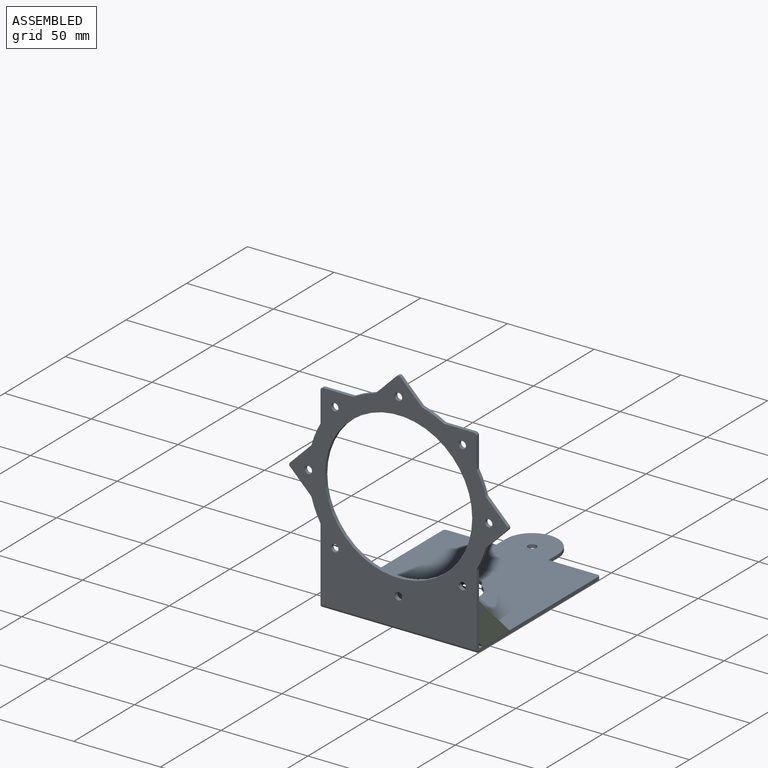
[diagram: assembled view]
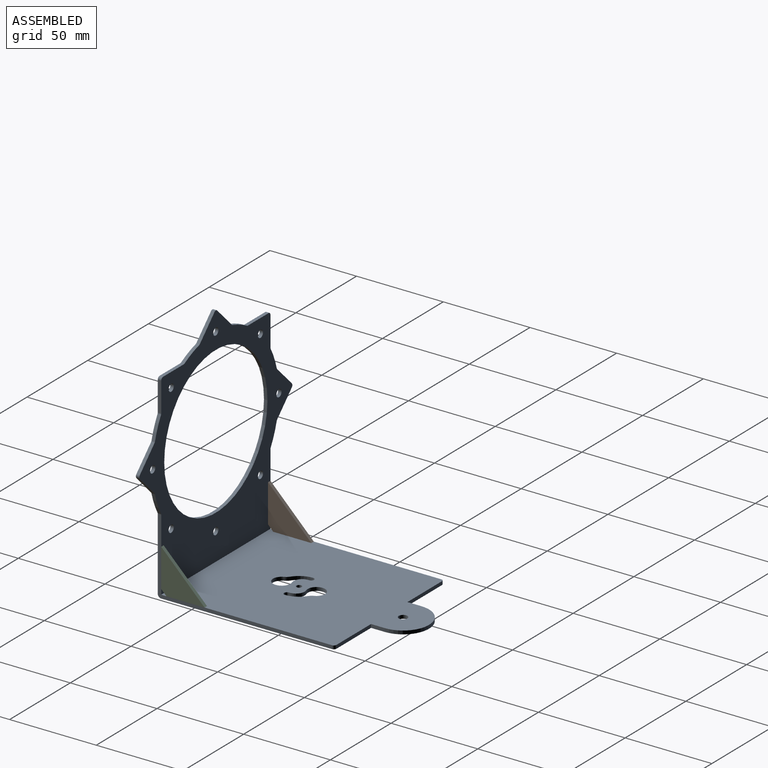
[diagram: assembled view, second angle]
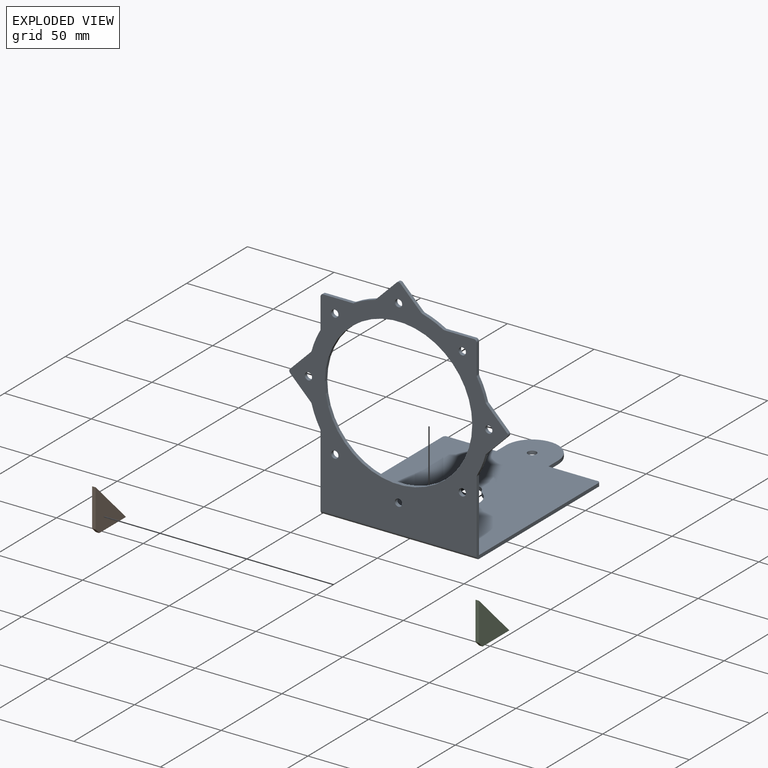
[diagram: exploded view]
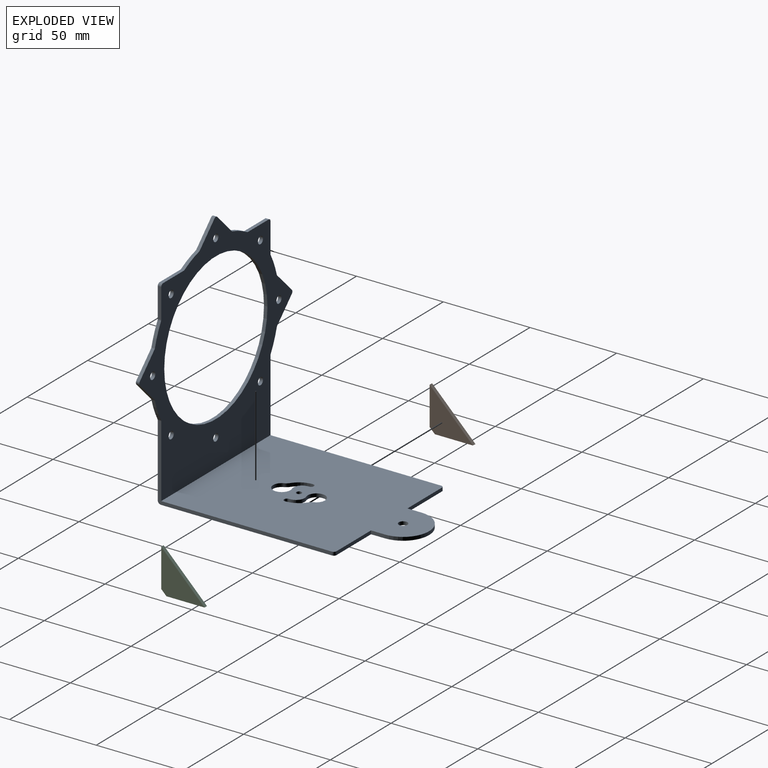
[diagram: exploded view, second angle]
ASSEMBLY  parts=3 mates=3
PART A: 70 faces, bbox 126x125x133 mm
  f0: plane 28.5x2mm, normal (0,1,0), area 57mm2, adj f1,f48,f60,f69
  f1: plane 123x90mm, normal (0,0,-1), area 9320.6mm2, adj f0,f2,f19,f49,f50,f51,f52,f53
  f2: plane 100.5x43.54mm, normal (1,0,0), area 283.2mm2, adj f1,f29,f30,f47,f48,f50,f68
  f3: cylinder r=52mm len=11.94mm, axis (0,1,0), area 25.9mm2, adj f29,f30,f46,f47
  f4: plane 12.05x12.05mm, normal (0.71,0,-0.71), area 34.1mm2, adj f29,f30,f45,f46
  f5: plane 12.05x12.05mm, normal (0.71,0,0.71), area 34.1mm2, adj f29,f30,f44,f45
  f6: cylinder r=52mm len=11.94mm, axis (0,1,0), area 25.9mm2, adj f29,f30,f43,f44
  f7: plane 17.04x2mm, normal (1,0,0), area 34.1mm2, adj f29,f30,f42,f43
  f8: plane 17.04x2mm, normal (0,0,1), area 34.1mm2, adj f29,f30,f41,f42
  f9: cylinder r=52mm len=11.94mm, axis (0,1,0), area 25.9mm2, adj f29,f30,f40,f41
  f10: plane 12.05x12.05mm, normal (0.71,0,0.71), area 34.1mm2, adj f29,f30,f39,f40
  f11: plane 12.05x12.05mm, normal (-0.71,0,0.71), area 34.1mm2, adj f29,f30,f38,f39
  f12: cylinder r=52mm len=11.94mm, axis (0,1,0), area 25.9mm2, adj f29,f30,f37,f38
  f13: plane 17.04x2mm, normal (0,0,1), area 34.1mm2, adj f29,f30,f36,f37
  f14: plane 17.04x2mm, normal (-1,0,0), area 34.1mm2, adj f29,f30,f35,f36
  f15: cylinder r=52mm len=11.94mm, axis (0,1,0), area 25.9mm2, adj f29,f30,f34,f35
  f16: plane 12.05x12.05mm, normal (-0.71,0,0.71), area 34.1mm2, adj f29,f30,f33,f34
  f17: plane 12.05x12.05mm, normal (-0.71,0,-0.71), area 34.1mm2, adj f29,f30,f32,f33
  f18: cylinder r=52mm len=11.94mm, axis (0,1,0), area 25.9mm2, adj f29,f30,f31,f32
  f19: plane 100.5x43.54mm, normal (-1,0,0), area 283.2mm2, adj f1,f29,f30,f31,f48,f50,f69
  f20: cylinder r=42.5mm len=85mm, axis (0,1,0), area 534.1mm2, adj f29,f30
  f21: cylinder r=2.1mm len=4.2mm, axis (0,1,0), area 26.4mm2, adj f29,f30
  f22: cylinder r=2.1mm len=4.2mm, axis (0,1,0), area 26.4mm2, adj f29,f30
  f23: cylinder r=2.1mm len=4.2mm, axis (0,1,0), area 26.4mm2, adj f29,f30
  f24: cylinder r=2.1mm len=4.2mm, axis (0,1,0), area 26.4mm2, adj f29,f30
  f25: cylinder r=2.1mm len=4.2mm, axis (0,1,0), area 26.4mm2, adj f29,f30
  f26: cylinder r=2.1mm len=4.2mm, axis (0,1,0), area 26.4mm2, adj f29,f30
  f27: cylinder r=2.1mm len=4.2mm, axis (0,1,0), area 26.4mm2, adj f29,f30
  f28: cylinder r=2.1mm len=4.2mm, axis (0,1,0), area 26.4mm2, adj f29,f30
  f29: plane 131.02x126.04mm, normal (0,-1,0), area 5566.3mm2, adj f2,f3,f4,f5,f6,f7,f8,f9
  f30: plane 131.02x126.04mm, normal (0,1,0), area 5566.3mm2, adj f2,f3,f4,f5,f6,f7,f8,f9
  f31: cylinder r=1.5mm len=2mm, axis (0,1,0), area 1.6mm2, adj f18,f19,f29,f30
  f32: cylinder r=1.5mm len=2mm, axis (0,1,0), area 1.6mm2, adj f17,f18,f29,f30
  f33: cylinder r=1.5mm len=2.12mm, axis (0,-1,0), area 4.7mm2, adj f16,f17,f29,f30
  f34: cylinder r=1.5mm len=2mm, axis (0,1,0), area 1.6mm2, adj f15,f16,f29,f30
  f35: cylinder r=1.5mm len=2mm, axis (0,1,0), area 1.6mm2, adj f14,f15,f29,f30
  f36: cylinder r=1.5mm len=2mm, axis (0,1,0), area 4.7mm2, adj f13,f14,f29,f30
  f37: cylinder r=1.5mm len=2mm, axis (0,1,0), area 1.6mm2, adj f12,f13,f29,f30
  f38: cylinder r=1.5mm len=2mm, axis (0,1,0), area 1.6mm2, adj f11,f12,f29,f30
  f39: cylinder r=1.5mm len=2.12mm, axis (0,1,0), area 4.7mm2, adj f10,f11,f29,f30
  f40: cylinder r=1.5mm len=2mm, axis (0,1,0), area 1.6mm2, adj f9,f10,f29,f30
  f41: cylinder r=1.5mm len=2mm, axis (0,1,0), area 1.6mm2, adj f8,f9,f29,f30
  f42: cylinder r=1.5mm len=2mm, axis (0,-1,0), area 4.7mm2, adj f7,f8,f29,f30
  f43: cylinder r=1.5mm len=2mm, axis (0,1,0), area 1.6mm2, adj f6,f7,f29,f30
  f44: cylinder r=1.5mm len=2mm, axis (0,1,0), area 1.6mm2, adj f5,f6,f29,f30
  f45: cylinder r=1.5mm len=2.12mm, axis (0,-1,0), area 4.7mm2, adj f4,f5,f29,f30
  f46: cylinder r=1.5mm len=2mm, axis (0,1,0), area 1.6mm2, adj f3,f4,f29,f30
  f47: cylinder r=1.5mm len=2mm, axis (0,1,0), area 1.6mm2, adj f2,f3,f29,f30
  f48: plane 123x90mm, normal (0,0,1), area 9320.6mm2, adj f0,f2,f19,f30,f49,f51,f52,f53
  f49: plane 28.5x2mm, normal (0,1,0), area 57mm2, adj f1,f48,f62,f68
  f50: cylinder r=2mm len=90mm, axis (-1,0,0), area 282.7mm2, adj f1,f2,f19,f29
  f51: cylinder r=1.6mm len=3.2mm, axis (0,0,-1), area 10.1mm2, adj f1,f48,f52,f54
  f52: cylinder r=8.4mm len=2mm, axis (0,0,-1), area 2.9mm2, adj f1,f48,f51,f66
  f53: cylinder r=5mm len=10mm, axis (0,0,-1), area 46.7mm2, adj f1,f48,f66,f67
  f54: cylinder r=11.6mm len=9.63mm, axis (0,0,-1), area 22.7mm2, adj f1,f48,f51,f67
  f55: cylinder r=1.5mm len=3mm, axis (0,0,-1), area 18.8mm2, adj f1,f48
  f56: cylinder r=1.6mm len=3.2mm, axis (0,0,-1), area 10.1mm2, adj f1,f48,f57,f59
  f57: cylinder r=8.4mm len=2mm, axis (0,0,-1), area 2.9mm2, adj f1,f48,f56,f65
  f58: cylinder r=5mm len=10mm, axis (0,0,-1), area 46.7mm2, adj f1,f48,f64,f65
  f59: cylinder r=11.6mm len=9.63mm, axis (0,0,-1), area 22.7mm2, adj f1,f48,f56,f64
  f60: plane 8x2mm, normal (-1,0,0), area 16mm2, adj f0,f1,f48,f61
  f61: cylinder r=15mm len=30mm, axis (0,0,-1), area 94.2mm2, adj f1,f48,f60,f62
  f62: plane 8x2mm, normal (1,0,0), area 16mm2, adj f1,f48,f49,f61
  f63: cylinder r=2.5mm len=5mm, axis (0,0,-1), area 31.4mm2, adj f1,f48
  f64: cylinder r=5mm len=2.26mm, axis (0,0,-1), area 5.9mm2, adj f1,f48,f58,f59
  f65: cylinder r=5mm len=6.6mm, axis (0,0,1), area 17.4mm2, adj f1,f48,f57,f58
  f66: cylinder r=5mm len=6.6mm, axis (0,0,1), area 17.4mm2, adj f1,f48,f52,f53
  f67: cylinder r=5mm len=2.26mm, axis (0,0,-1), area 5.9mm2, adj f1,f48,f53,f54
  f68: cylinder r=1.5mm len=2mm, axis (0,0,-1), area 4.7mm2, adj f1,f2,f48,f49
  f69: cylinder r=1.5mm len=2mm, axis (0,0,1), area 4.7mm2, adj f0,f1,f19,f48
PART B: 6 faces, bbox 25x2x25 mm
  f0: plane 22x2mm, normal (-1,0,0), area 44mm2, adj f1,f3,f4,f5
  f1: plane 3x3mm, normal (-0.71,0,-0.71), area 8.5mm2, adj f0,f2,f4,f5
  f2: plane 22x2mm, normal (0,0,-1), area 44mm2, adj f1,f3,f4,f5
  f3: plane 25x25mm, normal (0.71,0,0.71), area 70.7mm2, adj f0,f2,f4,f5
  f4: plane 25x25mm, normal (0,-1,0), area 308mm2, adj f0,f1,f2,f3
  f5: plane 25x25mm, normal (0,1,0), area 308mm2, adj f0,f1,f2,f3
PART C: same geometry as B
PLACE A t=(-36,-14.76,2.05)mm fixed
PLACE B rot(axis=(0,0,1),90deg) t=(-36,-14.76,-20.95)mm
PLACE C rot(axis=(0,0,1),90deg) t=(52,-14.76,-20.95)mm
MATE planar C.f4 <-> A.f2  axis (1,0,0) through (54,-6.32,-12.51)mm
MATE planar C.f2 <-> A.f48  axis (0,0,-1) through (53,-0.76,-20.95)mm
MATE planar C.f0 <-> A.f30  axis (0,-1,0) through (53,-14.76,-6.95)mm
